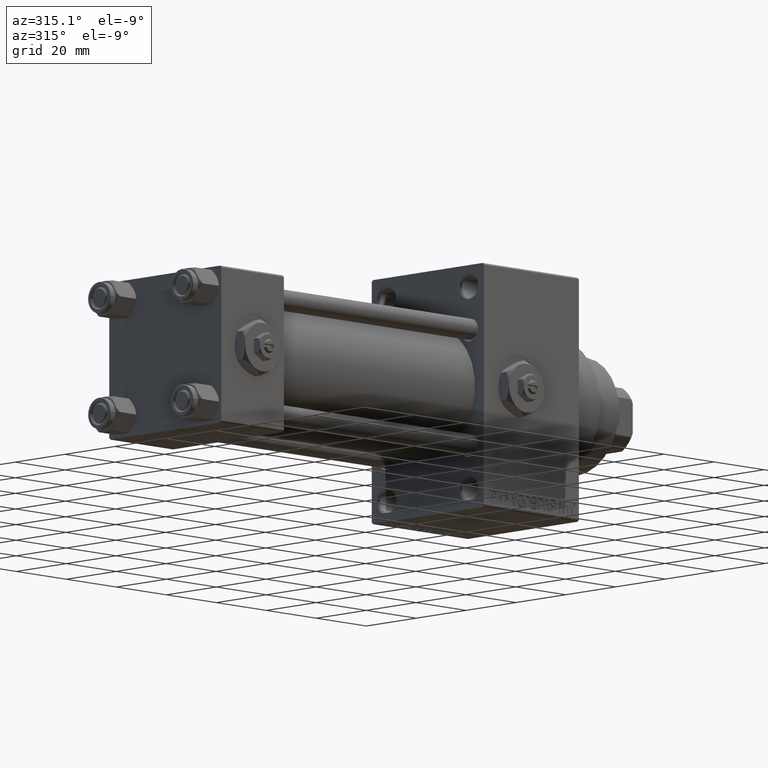
[diagram: clean part render]
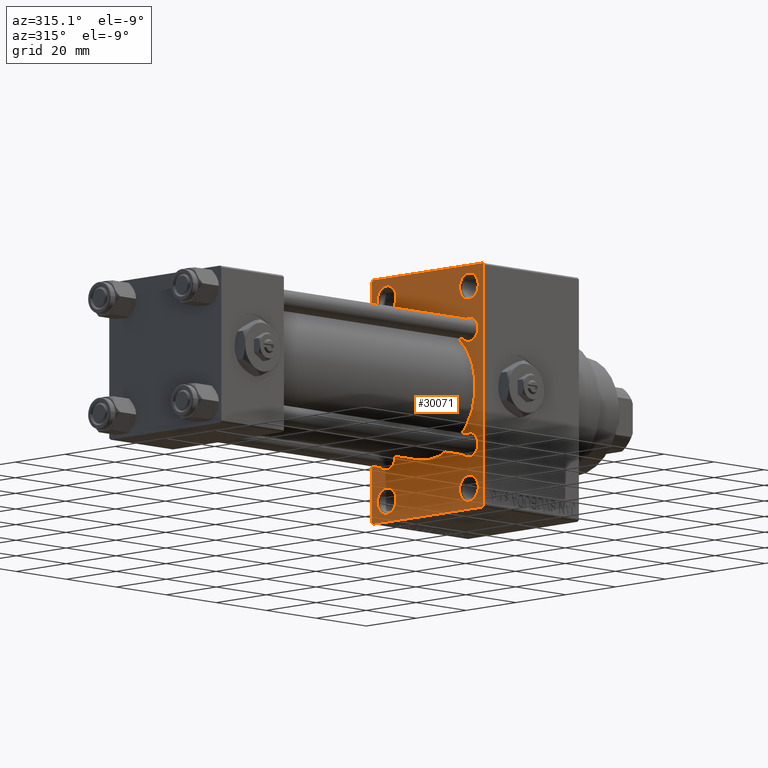
[diagram: same view with one face highlighted and labeled with its STEP entity id]
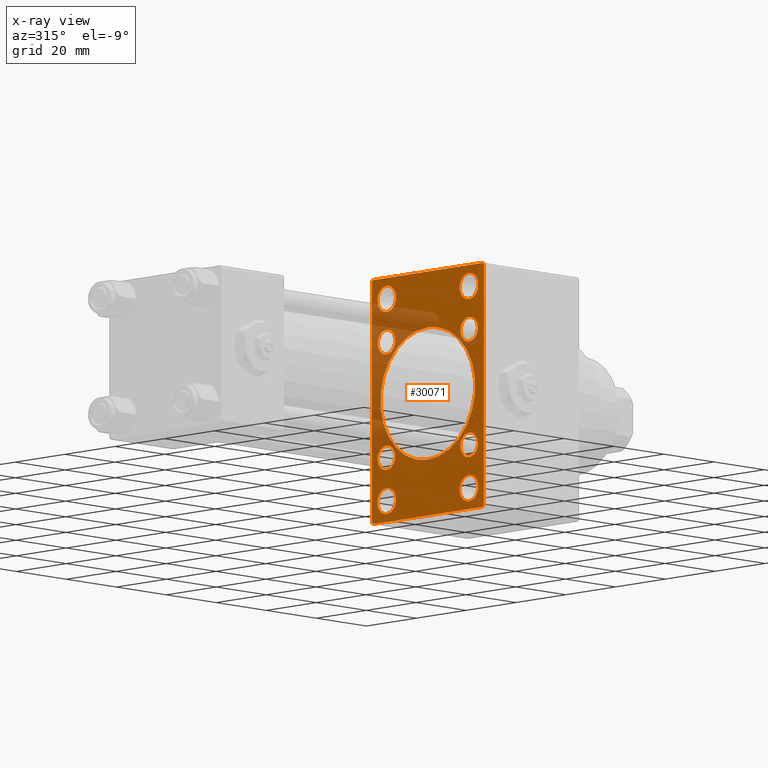
[diagram: x-ray of the same camera — body ghosted, the highlighted face saturated]
A machine part, auxiliary view. The second image highlights one B-rep face of the part: STEP entity #30071.
The next image is the same camera in x-ray: the body ghosted, the highlighted face saturated — about 21% of this face is hidden behind the body in this view.
In plain terms, the highlighted planar face has unit normal (-1, 0, 0).
Its self-contained STEP definition (entity closure, byte-faithful):
#461 = AXIS2_PLACEMENT_3D ( 'NONE', #41357, #44334, #49047 ) ;
#466 = FACE_BOUND ( 'NONE', #9879, .T. ) ;
#566 = EDGE_LOOP ( 'NONE', ( #28582, #37551 ) ) ;
#801 = VERTEX_POINT ( 'NONE', #32158 ) ;
#1436 = DIRECTION ( 'NONE',  ( 0.000000000000000000, 0.000000000000000000, 1.000000000000000000 ) ) ;
#1617 = LINE ( 'NONE', #17417, #16444 ) ;
#1856 = CARTESIAN_POINT ( 'NONE',  ( 105.0000000000000142, -16.50000000000000000, 32.74999999999990052 ) ) ;
#2452 = DIRECTION ( 'NONE',  ( 1.000000000000000000, 0.000000000000000000, 0.000000000000000000 ) ) ;
#2573 = DIRECTION ( 'NONE',  ( 0.000000000000000000, 0.000000000000000000, 1.000000000000000000 ) ) ;
#2970 = CIRCLE ( 'NONE', #36282, 3.749999999999888978 ) ;
#3060 = EDGE_CURVE ( 'NONE', #39138, #17800, #2970, .T. ) ;
#3067 = CARTESIAN_POINT ( 'NONE',  ( 105.0000000000000142, 22.49999999999999645, 35.00000000000000000 ) ) ;
#3189 = DIRECTION ( 'NONE',  ( 0.000000000000000000, -1.000000000000000000, 0.000000000000000000 ) ) ;
#3394 = EDGE_CURVE ( 'NONE', #44156, #10572, #11765, .T. ) ;
#3693 = EDGE_CURVE ( 'NONE', #39643, #40113, #12361, .T. ) ;
#3947 = FACE_OUTER_BOUND ( 'NONE', #45109, .T. ) ;
#4367 = CARTESIAN_POINT ( 'NONE',  ( 105.0000000000000142, -22.50000000000000355, 35.00000000000000000 ) ) ;
#4494 = DIRECTION ( 'NONE',  ( 0.000000000000000000, 0.000000000000000000, 1.000000000000000000 ) ) ;
#4555 = DIRECTION ( 'NONE',  ( 1.000000000000000000, 0.000000000000000000, 0.000000000000000000 ) ) ;
#4985 = CARTESIAN_POINT ( 'NONE',  ( 105.0000000000000142, 16.59999999999999787, -16.60000000000000497 ) ) ;
#5463 = EDGE_CURVE ( 'NONE', #37700, #40822, #33317, .T. ) ;
#5828 = LINE ( 'NONE', #35867, #30812 ) ;
#5927 = ORIENTED_EDGE ( 'NONE', *, *, #41818, .T. ) ;
#5930 = VERTEX_POINT ( 'NONE', #38217 ) ;
#6269 = DIRECTION ( 'NONE',  ( 0.000000000000000000, 0.000000000000000000, 1.000000000000000000 ) ) ;
#6377 = CARTESIAN_POINT ( 'NONE',  ( 105.0000000000000142, 16.50000000000000000, -25.25000000000009948 ) ) ;
#6520 = EDGE_CURVE ( 'NONE', #36177, #27707, #25423, .T. ) ;
#6752 = VERTEX_POINT ( 'NONE', #26315 ) ;
#7171 = EDGE_CURVE ( 'NONE', #46115, #9695, #13839, .T. ) ;
#7472 = CARTESIAN_POINT ( 'NONE',  ( 105.0000000000000142, 16.50000000000000000, 29.00000000000000355 ) ) ;
#7657 = FACE_BOUND ( 'NONE', #37226, .T. ) ;
#7775 = CARTESIAN_POINT ( 'NONE',  ( 105.0000000000000142, -16.50000000000000000, 29.00000000000000711 ) ) ;
#7779 = CIRCLE ( 'NONE', #45785, 3.500000000000006661 ) ;
#8145 = DIRECTION ( 'NONE',  ( 1.000000000000000000, 0.000000000000000000, 0.000000000000000000 ) ) ;
#8158 = PLANE ( 'NONE',  #27891 ) ;
#8387 = CIRCLE ( 'NONE', #461, 19.00000000000000000 ) ;
#8391 = CARTESIAN_POINT ( 'NONE',  ( 105.0000000000000142, 16.50000000000000000, 29.00000000000000355 ) ) ;
#9356 = VECTOR ( 'NONE', #29134, 1000.000000000000000 ) ;
#9695 = VERTEX_POINT ( 'NONE', #13261 ) ;
#9857 = ORIENTED_EDGE ( 'NONE', *, *, #48534, .T. ) ;
#9879 = EDGE_LOOP ( 'NONE', ( #35352, #29298 ) ) ;
#9917 = DIRECTION ( 'NONE',  ( 1.000000000000000000, 0.000000000000000000, 0.000000000000000000 ) ) ;
#10031 = CARTESIAN_POINT ( 'NONE',  ( 105.0000000000000142, 16.59999999999999787, 16.60000000000000497 ) ) ;
#10147 = CIRCLE ( 'NONE', #37892, 3.500000000000006661 ) ;
#10282 = DIRECTION ( 'NONE',  ( 1.000000000000000000, 0.000000000000000000, 0.000000000000000000 ) ) ;
#10572 = VERTEX_POINT ( 'NONE', #10706 ) ;
#10706 = CARTESIAN_POINT ( 'NONE',  ( 105.0000000000000142, 16.50000000000000000, 32.74999999999989342 ) ) ;
#11036 = CARTESIAN_POINT ( 'NONE',  ( 105.0000000000000142, 21.99999999999999645, 35.00000000000000000 ) ) ;
#11370 = VERTEX_POINT ( 'NONE', #13463 ) ;
#11626 = DIRECTION ( 'NONE',  ( -1.000000000000000000, 0.000000000000000000, -0.000000000000000000 ) ) ;
#11765 = CIRCLE ( 'NONE', #18882, 3.749999999999885425 ) ;
#12265 = DIRECTION ( 'NONE',  ( 1.000000000000000000, 0.000000000000000000, 0.000000000000000000 ) ) ;
#12319 = AXIS2_PLACEMENT_3D ( 'NONE', #4985, #19878, #27328 ) ;
#12361 = LINE ( 'NONE', #27754, #9356 ) ;
#12364 = FACE_BOUND ( 'NONE', #566, .T. ) ;
#13086 = CARTESIAN_POINT ( 'NONE',  ( 105.0000000000000142, -16.59999999999999076, -16.60000000000000853 ) ) ;
#13261 = CARTESIAN_POINT ( 'NONE',  ( 105.0000000000000142, -16.50000000000000000, -25.25000000000009948 ) ) ;
#13318 = LINE ( 'NONE', #46589, #21943 ) ;
#13463 = CARTESIAN_POINT ( 'NONE',  ( 105.0000000000000142, 16.59999999999999787, 13.09999999999999609 ) ) ;
#13644 = CARTESIAN_POINT ( 'NONE',  ( 105.0000000000000142, -16.59999999999999076, 16.60000000000000853 ) ) ;
#13804 = DIRECTION ( 'NONE',  ( 1.000000000000000000, 0.000000000000000000, 0.000000000000000000 ) ) ;
#13839 = CIRCLE ( 'NONE', #47152, 3.749999999999895639 ) ;
#13913 = CARTESIAN_POINT ( 'NONE',  ( 105.0000000000000142, -16.50000000000000000, -32.74999999999989342 ) ) ;
#14058 = EDGE_CURVE ( 'NONE', #5930, #40113, #20211, .T. ) ;
#14067 = CARTESIAN_POINT ( 'NONE',  ( 105.0000000000000142, 16.50000000000000000, -32.74999999999989342 ) ) ;
#14069 = AXIS2_PLACEMENT_3D ( 'NONE', #25344, #32068, #32308 ) ;
#14146 = ORIENTED_EDGE ( 'NONE', *, *, #40778, .T. ) ;
#14260 = DIRECTION ( 'NONE',  ( 1.000000000000000000, 0.000000000000000000, 0.000000000000000000 ) ) ;
#14326 = AXIS2_PLACEMENT_3D ( 'NONE', #18242, #23937, #34621 ) ;
#14566 = VERTEX_POINT ( 'NONE', #20530 ) ;
#15052 = DIRECTION ( 'NONE',  ( 0.000000000000000000, 0.000000000000000000, 1.000000000000000000 ) ) ;
#15569 = VERTEX_POINT ( 'NONE', #15660 ) ;
#15660 = CARTESIAN_POINT ( 'NONE',  ( 105.0000000000000142, -2.752562955852396712E-16, -19.00000000000000000 ) ) ;
#15888 = CARTESIAN_POINT ( 'NONE',  ( 105.0000000000000142, -16.59999999999999076, 20.10000000000001208 ) ) ;
#15996 = EDGE_CURVE ( 'NONE', #39643, #40770, #13318, .T. ) ;
#16222 = VERTEX_POINT ( 'NONE', #47562 ) ;
#16270 = ORIENTED_EDGE ( 'NONE', *, *, #36226, .T. ) ;
#16366 = EDGE_CURVE ( 'NONE', #32543, #38769, #1617, .T. ) ;
#16444 = VECTOR ( 'NONE', #39100, 1000.000000000000114 ) ;
#17203 = CARTESIAN_POINT ( 'NONE',  ( 105.0000000000000142, 16.59999999999999787, -13.09999999999999787 ) ) ;
#17372 = CIRCLE ( 'NONE', #34037, 3.500000000000006661 ) ;
#17417 = CARTESIAN_POINT ( 'NONE',  ( 105.0000000000000142, 28.49999999999999645, -28.49999999999999645 ) ) ;
#17800 = VERTEX_POINT ( 'NONE', #40503 ) ;
#17911 = EDGE_CURVE ( 'NONE', #10572, #44156, #29141, .T. ) ;
#18242 = CARTESIAN_POINT ( 'NONE',  ( 105.0000000000000142, 16.50000000000000000, -28.99999999999999289 ) ) ;
#18316 = ORIENTED_EDGE ( 'NONE', *, *, #28192, .T. ) ;
#18612 = VECTOR ( 'NONE', #28878, 1000.000000000000000 ) ;
#18702 = DIRECTION ( 'NONE',  ( 0.000000000000000000, 0.000000000000000000, 1.000000000000000000 ) ) ;
#18765 = EDGE_CURVE ( 'NONE', #17800, #39138, #47436, .T. ) ;
#18871 = CARTESIAN_POINT ( 'NONE',  ( 105.0000000000000142, -16.59999999999999076, 13.10000000000000142 ) ) ;
#18882 = AXIS2_PLACEMENT_3D ( 'NONE', #7472, #27092, #4494 ) ;
#18884 = CARTESIAN_POINT ( 'NONE',  ( 105.0000000000000142, -16.59999999999999076, -13.10000000000000142 ) ) ;
#18905 = AXIS2_PLACEMENT_3D ( 'NONE', #47713, #44466, #6269 ) ;
#19038 = AXIS2_PLACEMENT_3D ( 'NONE', #22260, #12265, #15052 ) ;
#19103 = ORIENTED_EDGE ( 'NONE', *, *, #17911, .T. ) ;
#19129 = CIRCLE ( 'NONE', #22265, 3.500000000000006661 ) ;
#19653 = AXIS2_PLACEMENT_3D ( 'NONE', #13644, #9917, #40448 ) ;
#19878 = DIRECTION ( 'NONE',  ( 1.000000000000000000, 0.000000000000000000, 0.000000000000000000 ) ) ;
#20211 = LINE ( 'NONE', #35358, #31401 ) ;
#20530 = CARTESIAN_POINT ( 'NONE',  ( 105.0000000000000142, -16.59999999999999076, -20.10000000000001208 ) ) ;
#20973 = ORIENTED_EDGE ( 'NONE', *, *, #3394, .T. ) ;
#21064 = CARTESIAN_POINT ( 'NONE',  ( 105.0000000000000142, 21.99999999999999645, -35.00000000000000000 ) ) ;
#21463 = CARTESIAN_POINT ( 'NONE',  ( 105.0000000000000142, 16.50000000000000000, -28.99999999999999289 ) ) ;
#21550 = CARTESIAN_POINT ( 'NONE',  ( 105.0000000000000142, 16.59999999999999787, -16.60000000000000497 ) ) ;
#21729 = CARTESIAN_POINT ( 'NONE',  ( 105.0000000000000142, -16.50000000000000000, -28.99999999999999289 ) ) ;
#21943 = VECTOR ( 'NONE', #27743, 1000.000000000000114 ) ;
#22171 = ORIENTED_EDGE ( 'NONE', *, *, #48792, .F. ) ;
#22260 = CARTESIAN_POINT ( 'NONE',  ( 105.0000000000000142, -16.59999999999999076, 16.60000000000000853 ) ) ;
#22265 = AXIS2_PLACEMENT_3D ( 'NONE', #38420, #8145, #38183 ) ;
#23424 = ORIENTED_EDGE ( 'NONE', *, *, #34798, .T. ) ;
#23533 = FACE_BOUND ( 'NONE', #34977, .T. ) ;
#23937 = DIRECTION ( 'NONE',  ( 1.000000000000000000, 0.000000000000000000, 0.000000000000000000 ) ) ;
#24794 = CIRCLE ( 'NONE', #32717, 3.500000000000006661 ) ;
#25009 = EDGE_LOOP ( 'NONE', ( #41085, #29409 ) ) ;
#25323 = EDGE_LOOP ( 'NONE', ( #27488, #14146 ) ) ;
#25344 = CARTESIAN_POINT ( 'NONE',  ( 105.0000000000000142, -2.602085213965210642E-15, 0.000000000000000000 ) ) ;
#25423 = CIRCLE ( 'NONE', #14326, 3.749999999999895639 ) ;
#25678 = DIRECTION ( 'NONE',  ( 0.000000000000000000, 0.000000000000000000, 1.000000000000000000 ) ) ;
#26315 = CARTESIAN_POINT ( 'NONE',  ( 105.0000000000000142, -21.99999999999997513, -35.00000000000000000 ) ) ;
#26540 = EDGE_LOOP ( 'NONE', ( #19103, #20973 ) ) ;
#26775 = FACE_BOUND ( 'NONE', #37730, .T. ) ;
#26867 = ORIENTED_EDGE ( 'NONE', *, *, #28462, .T. ) ;
#27005 = ORIENTED_EDGE ( 'NONE', *, *, #31304, .T. ) ;
#27031 = FACE_BOUND ( 'NONE', #26540, .T. ) ;
#27092 = DIRECTION ( 'NONE',  ( 1.000000000000000000, 0.000000000000000000, 0.000000000000000000 ) ) ;
#27328 = DIRECTION ( 'NONE',  ( 0.000000000000000000, 0.000000000000000000, 1.000000000000000000 ) ) ;
#27449 = DIRECTION ( 'NONE',  ( 0.000000000000000000, 0.000000000000000000, -1.000000000000000000 ) ) ;
#27488 = ORIENTED_EDGE ( 'NONE', *, *, #36454, .T. ) ;
#27516 = DIRECTION ( 'NONE',  ( -0.000000000000000000, 0.000000000000000000, 1.000000000000000000 ) ) ;
#27707 = VERTEX_POINT ( 'NONE', #14067 ) ;
#27743 = DIRECTION ( 'NONE',  ( 0.000000000000000000, 0.7071067811865474617, -0.7071067811865474617 ) ) ;
#27754 = CARTESIAN_POINT ( 'NONE',  ( 105.0000000000000142, 22.49999999999999645, 35.00000000000000000 ) ) ;
#27891 = AXIS2_PLACEMENT_3D ( 'NONE', #34717, #11626, #27516 ) ;
#28192 = EDGE_CURVE ( 'NONE', #38769, #6752, #44864, .T. ) ;
#28462 = EDGE_CURVE ( 'NONE', #14566, #36118, #19129, .T. ) ;
#28582 = ORIENTED_EDGE ( 'NONE', *, *, #5463, .T. ) ;
#28773 = ORIENTED_EDGE ( 'NONE', *, *, #14058, .T. ) ;
#28878 = DIRECTION ( 'NONE',  ( 0.000000000000000000, 0.000000000000000000, -1.000000000000000000 ) ) ;
#29134 = DIRECTION ( 'NONE',  ( 0.000000000000000000, -1.000000000000000000, 0.000000000000000000 ) ) ;
#29141 = CIRCLE ( 'NONE', #38694, 3.749999999999885425 ) ;
#29298 = ORIENTED_EDGE ( 'NONE', *, *, #41735, .T. ) ;
#29359 = CARTESIAN_POINT ( 'NONE',  ( 105.0000000000000142, 22.49999999999999645, -34.50000000000000000 ) ) ;
#29369 = LINE ( 'NONE', #3067, #18612 ) ;
#29409 = ORIENTED_EDGE ( 'NONE', *, *, #18765, .T. ) ;
#30071 = ADVANCED_FACE ( 'NONE', ( #45613, #26775, #466, #27031, #12364, #23533, #7657, #42660, #42172, #3947 ), #8158, .T. ) ;
#30129 = DIRECTION ( 'NONE',  ( 1.000000000000000000, 0.000000000000000000, 0.000000000000000000 ) ) ;
#30812 = VECTOR ( 'NONE', #32128, 1000.000000000000114 ) ;
#30993 = ORIENTED_EDGE ( 'NONE', *, *, #47419, .T. ) ;
#31269 = EDGE_LOOP ( 'NONE', ( #9857, #26867 ) ) ;
#31304 = EDGE_CURVE ( 'NONE', #9695, #46115, #44580, .T. ) ;
#31367 = ORIENTED_EDGE ( 'NONE', *, *, #3693, .F. ) ;
#31401 = VECTOR ( 'NONE', #46769, 1000.000000000000114 ) ;
#31565 = ORIENTED_EDGE ( 'NONE', *, *, #7171, .T. ) ;
#31815 = CARTESIAN_POINT ( 'NONE',  ( 105.0000000000000142, 16.50000000000000000, 25.25000000000011724 ) ) ;
#32068 = DIRECTION ( 'NONE',  ( 1.000000000000000000, 0.000000000000000000, 0.000000000000000000 ) ) ;
#32128 = DIRECTION ( 'NONE',  ( 0.000000000000000000, -0.7071067811865474617, 0.7071067811865474617 ) ) ;
#32158 = CARTESIAN_POINT ( 'NONE',  ( 105.0000000000000142, -22.50000000000000355, -34.49999999999998579 ) ) ;
#32308 = DIRECTION ( 'NONE',  ( 0.000000000000000000, 0.000000000000000000, -1.000000000000000000 ) ) ;
#32331 = CIRCLE ( 'NONE', #19653, 3.500000000000003109 ) ;
#32382 = EDGE_CURVE ( 'NONE', #46105, #11370, #24794, .T. ) ;
#32411 = ORIENTED_EDGE ( 'NONE', *, *, #44602, .T. ) ;
#32543 = VERTEX_POINT ( 'NONE', #29359 ) ;
#32546 = CARTESIAN_POINT ( 'NONE',  ( 105.0000000000000142, 16.59999999999999787, 20.10000000000001208 ) ) ;
#32629 = DIRECTION ( 'NONE',  ( 0.000000000000000000, 0.000000000000000000, 1.000000000000000000 ) ) ;
#32646 = ORIENTED_EDGE ( 'NONE', *, *, #32382, .T. ) ;
#32713 = DIRECTION ( 'NONE',  ( 0.000000000000000000, 0.000000000000000000, 1.000000000000000000 ) ) ;
#32717 = AXIS2_PLACEMENT_3D ( 'NONE', #47741, #47007, #2573 ) ;
#33272 = CARTESIAN_POINT ( 'NONE',  ( 105.0000000000000142, -21.99999999999998934, 35.00000000000000000 ) ) ;
#33317 = CIRCLE ( 'NONE', #19038, 3.500000000000003109 ) ;
#34037 = AXIS2_PLACEMENT_3D ( 'NONE', #13086, #13804, #1436 ) ;
#34621 = DIRECTION ( 'NONE',  ( 0.000000000000000000, 0.000000000000000000, 1.000000000000000000 ) ) ;
#34717 = CARTESIAN_POINT ( 'NONE',  ( 105.0000000000000142, 0.000000000000000000, 0.000000000000000000 ) ) ;
#34798 = EDGE_CURVE ( 'NONE', #40770, #32543, #29369, .T. ) ;
#34977 = EDGE_LOOP ( 'NONE', ( #32646, #5927 ) ) ;
#35079 = DIRECTION ( 'NONE',  ( 0.000000000000000000, 0.000000000000000000, 1.000000000000000000 ) ) ;
#35352 = ORIENTED_EDGE ( 'NONE', *, *, #6520, .T. ) ;
#35358 = CARTESIAN_POINT ( 'NONE',  ( 105.0000000000000142, -28.49999999999999645, 28.49999999999999645 ) ) ;
#35756 = VECTOR ( 'NONE', #3189, 1000.000000000000000 ) ;
#35867 = CARTESIAN_POINT ( 'NONE',  ( 105.0000000000000142, -28.49999999999999289, -28.49999999999999289 ) ) ;
#36118 = VERTEX_POINT ( 'NONE', #18884 ) ;
#36177 = VERTEX_POINT ( 'NONE', #6377 ) ;
#36226 = EDGE_CURVE ( 'NONE', #16222, #43769, #43214, .T. ) ;
#36282 = AXIS2_PLACEMENT_3D ( 'NONE', #7775, #4555, #35079 ) ;
#36454 = EDGE_CURVE ( 'NONE', #39582, #15569, #8387, .T. ) ;
#37226 = EDGE_LOOP ( 'NONE', ( #32411, #16270 ) ) ;
#37551 = ORIENTED_EDGE ( 'NONE', *, *, #42001, .T. ) ;
#37700 = VERTEX_POINT ( 'NONE', #15888 ) ;
#37730 = EDGE_LOOP ( 'NONE', ( #27005, #31565 ) ) ;
#37892 = AXIS2_PLACEMENT_3D ( 'NONE', #10031, #30129, #18702 ) ;
#38032 = VECTOR ( 'NONE', #27449, 1000.000000000000000 ) ;
#38183 = DIRECTION ( 'NONE',  ( 0.000000000000000000, 0.000000000000000000, 1.000000000000000000 ) ) ;
#38217 = CARTESIAN_POINT ( 'NONE',  ( 105.0000000000000142, -22.50000000000000355, 34.50000000000000000 ) ) ;
#38420 = CARTESIAN_POINT ( 'NONE',  ( 105.0000000000000142, -16.59999999999999076, -16.60000000000000853 ) ) ;
#38649 = CIRCLE ( 'NONE', #14069, 19.00000000000000000 ) ;
#38680 = DIRECTION ( 'NONE',  ( 1.000000000000000000, 0.000000000000000000, 0.000000000000000000 ) ) ;
#38694 = AXIS2_PLACEMENT_3D ( 'NONE', #8391, #38680, #48674 ) ;
#38769 = VERTEX_POINT ( 'NONE', #21064 ) ;
#39100 = DIRECTION ( 'NONE',  ( -0.000000000000000000, -0.7071067811865474617, -0.7071067811865474617 ) ) ;
#39138 = VERTEX_POINT ( 'NONE', #1856 ) ;
#39582 = VERTEX_POINT ( 'NONE', #48020 ) ;
#39643 = VERTEX_POINT ( 'NONE', #11036 ) ;
#40113 = VERTEX_POINT ( 'NONE', #33272 ) ;
#40179 = ORIENTED_EDGE ( 'NONE', *, *, #16366, .T. ) ;
#40263 = CIRCLE ( 'NONE', #46609, 3.749999999999895639 ) ;
#40448 = DIRECTION ( 'NONE',  ( 0.000000000000000000, 0.000000000000000000, 1.000000000000000000 ) ) ;
#40503 = CARTESIAN_POINT ( 'NONE',  ( 105.0000000000000142, -16.50000000000000000, 25.25000000000012079 ) ) ;
#40770 = VERTEX_POINT ( 'NONE', #44200 ) ;
#40778 = EDGE_CURVE ( 'NONE', #15569, #39582, #38649, .T. ) ;
#40822 = VERTEX_POINT ( 'NONE', #18871 ) ;
#41085 = ORIENTED_EDGE ( 'NONE', *, *, #3060, .T. ) ;
#41357 = CARTESIAN_POINT ( 'NONE',  ( 105.0000000000000142, -2.602085213965210642E-15, 0.000000000000000000 ) ) ;
#41553 = ORIENTED_EDGE ( 'NONE', *, *, #15996, .T. ) ;
#41735 = EDGE_CURVE ( 'NONE', #27707, #36177, #40263, .T. ) ;
#41818 = EDGE_CURVE ( 'NONE', #11370, #46105, #10147, .T. ) ;
#41850 = LINE ( 'NONE', #4367, #38032 ) ;
#42001 = EDGE_CURVE ( 'NONE', #40822, #37700, #32331, .T. ) ;
#42172 = FACE_BOUND ( 'NONE', #25323, .T. ) ;
#42208 = AXIS2_PLACEMENT_3D ( 'NONE', #44294, #14260, #25678 ) ;
#42660 = FACE_BOUND ( 'NONE', #31269, .T. ) ;
#43214 = CIRCLE ( 'NONE', #12319, 3.500000000000006661 ) ;
#43769 = VERTEX_POINT ( 'NONE', #17203 ) ;
#44156 = VERTEX_POINT ( 'NONE', #31815 ) ;
#44200 = CARTESIAN_POINT ( 'NONE',  ( 105.0000000000000142, 22.49999999999999645, 34.50000000000000000 ) ) ;
#44294 = CARTESIAN_POINT ( 'NONE',  ( 105.0000000000000142, -16.50000000000000000, -28.99999999999999289 ) ) ;
#44313 = DIRECTION ( 'NONE',  ( 0.000000000000000000, 0.000000000000000000, 1.000000000000000000 ) ) ;
#44334 = DIRECTION ( 'NONE',  ( 1.000000000000000000, 0.000000000000000000, 0.000000000000000000 ) ) ;
#44466 = DIRECTION ( 'NONE',  ( 1.000000000000000000, 0.000000000000000000, 0.000000000000000000 ) ) ;
#44580 = CIRCLE ( 'NONE', #42208, 3.749999999999895639 ) ;
#44602 = EDGE_CURVE ( 'NONE', #43769, #16222, #7779, .T. ) ;
#44864 = LINE ( 'NONE', #48601, #35756 ) ;
#45109 = EDGE_LOOP ( 'NONE', ( #18316, #30993, #22171, #28773, #31367, #41553, #23424, #40179 ) ) ;
#45613 = FACE_BOUND ( 'NONE', #25009, .T. ) ;
#45785 = AXIS2_PLACEMENT_3D ( 'NONE', #21550, #2452, #32713 ) ;
#46105 = VERTEX_POINT ( 'NONE', #32546 ) ;
#46115 = VERTEX_POINT ( 'NONE', #13913 ) ;
#46589 = CARTESIAN_POINT ( 'NONE',  ( 105.0000000000000142, 28.49999999999999645, 28.49999999999999645 ) ) ;
#46609 = AXIS2_PLACEMENT_3D ( 'NONE', #21463, #10282, #32629 ) ;
#46769 = DIRECTION ( 'NONE',  ( -0.000000000000000000, 0.7071067811865474617, 0.7071067811865474617 ) ) ;
#47007 = DIRECTION ( 'NONE',  ( 1.000000000000000000, 0.000000000000000000, 0.000000000000000000 ) ) ;
#47152 = AXIS2_PLACEMENT_3D ( 'NONE', #21729, #48034, #44313 ) ;
#47419 = EDGE_CURVE ( 'NONE', #6752, #801, #5828, .T. ) ;
#47436 = CIRCLE ( 'NONE', #18905, 3.749999999999888978 ) ;
#47562 = CARTESIAN_POINT ( 'NONE',  ( 105.0000000000000142, 16.59999999999999787, -20.10000000000000853 ) ) ;
#47713 = CARTESIAN_POINT ( 'NONE',  ( 105.0000000000000142, -16.50000000000000000, 29.00000000000000711 ) ) ;
#47741 = CARTESIAN_POINT ( 'NONE',  ( 105.0000000000000142, 16.59999999999999787, 16.60000000000000497 ) ) ;
#48020 = CARTESIAN_POINT ( 'NONE',  ( 105.0000000000000142, -2.602085213965210642E-15, 19.00000000000000000 ) ) ;
#48034 = DIRECTION ( 'NONE',  ( 1.000000000000000000, 0.000000000000000000, 0.000000000000000000 ) ) ;
#48534 = EDGE_CURVE ( 'NONE', #36118, #14566, #17372, .T. ) ;
#48601 = CARTESIAN_POINT ( 'NONE',  ( 105.0000000000000142, 22.49999999999999645, -35.00000000000000000 ) ) ;
#48674 = DIRECTION ( 'NONE',  ( 0.000000000000000000, 0.000000000000000000, 1.000000000000000000 ) ) ;
#48792 = EDGE_CURVE ( 'NONE', #5930, #801, #41850, .T. ) ;
#49047 = DIRECTION ( 'NONE',  ( 0.000000000000000000, 0.000000000000000000, -1.000000000000000000 ) ) ;